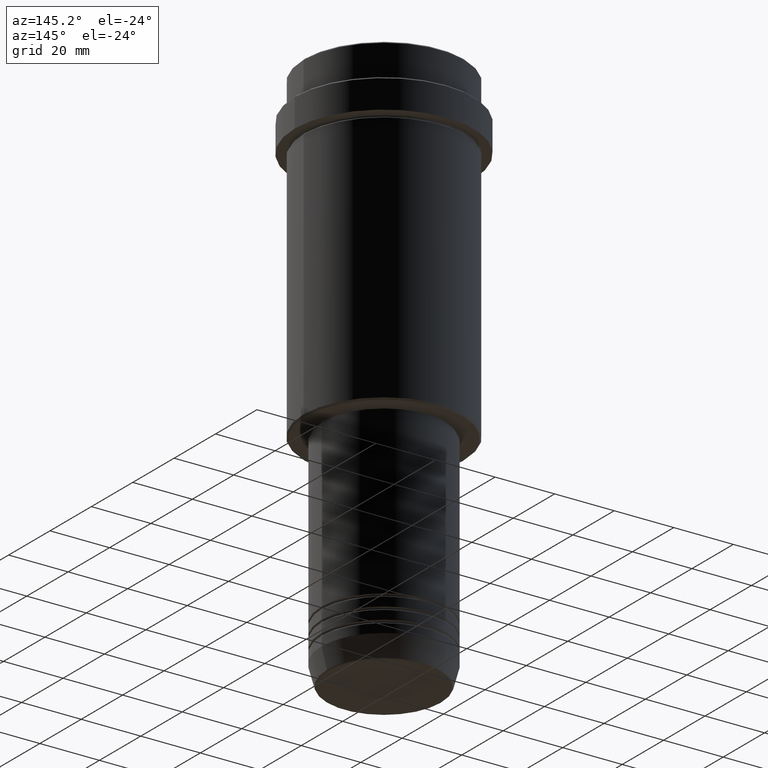
[diagram: clean part render]
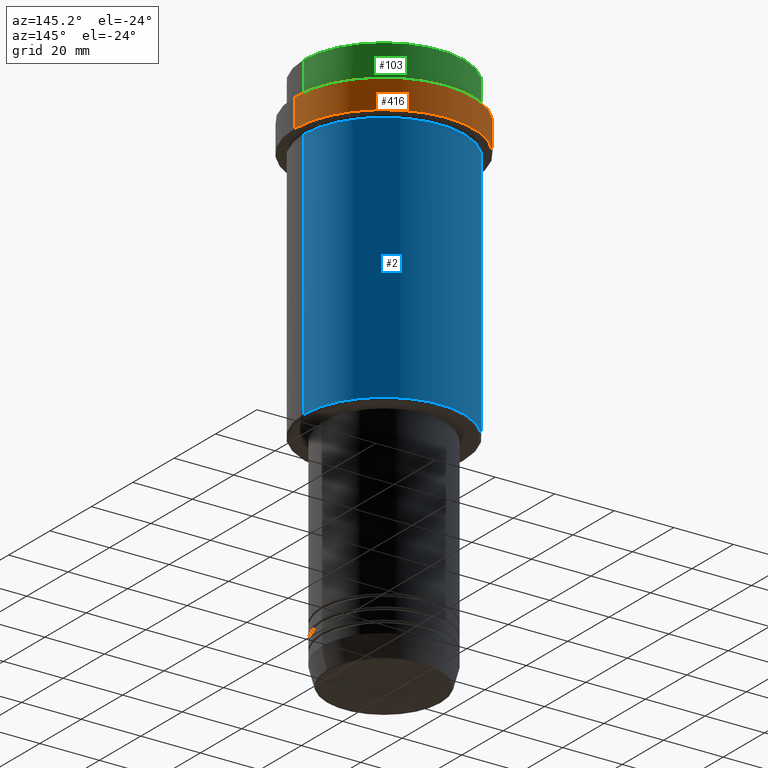
[diagram: same view with three faces highlighted in distinct colors, each labeled with its STEP entity id]
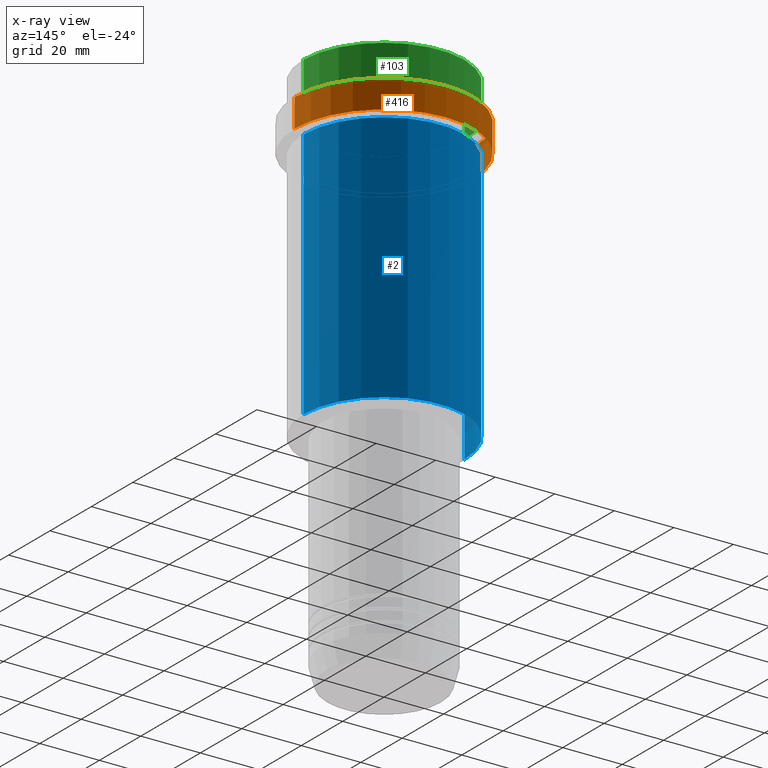
[diagram: x-ray of the same camera — body ghosted, the three highlighted faces saturated]
A machine part, auxiliary view with three faces highlighted in distinct colors.
The next image is the same camera in x-ray (body ghosted, the three faces saturated) — at least one of them is partly hidden behind the body in this view.
Their STEP definitions:

[orange] entity #416 — the highlighted cylindrical surface (partial cylindrical patch) has radius 30 mm, axis along (-0, -0, 1).
#30 = DIRECTION ( 'NONE',  ( 1.000000000000000000, 0.000000000000000000, 0.000000000000000000 ) ) ;
#39 = CARTESIAN_POINT ( 'NONE',  ( 0.000000000000000000, 0.000000000000000000, -22.00000000000000355 ) ) ;
#47 = ORIENTED_EDGE ( 'NONE', *, *, #409, .F. ) ;
#78 = VERTEX_POINT ( 'NONE', #212 ) ;
#107 = DIRECTION ( 'NONE',  ( -0.000000000000000000, -0.000000000000000000, 1.000000000000000000 ) ) ;
#211 = EDGE_CURVE ( 'NONE', #78, #968, #518, .T. ) ;
#212 = CARTESIAN_POINT ( 'NONE',  ( -30.00000000000000000, 3.673940397442059178E-15, -12.50000000000000888 ) ) ;
#243 = AXIS2_PLACEMENT_3D ( 'NONE', #1156, #692, #30 ) ;
#258 = VERTEX_POINT ( 'NONE', #618 ) ;
#285 = AXIS2_PLACEMENT_3D ( 'NONE', #39, #714, #617 ) ;
#311 = CARTESIAN_POINT ( 'NONE',  ( 0.000000000000000000, 0.000000000000000000, 0.000000000000000000 ) ) ;
#380 = VERTEX_POINT ( 'NONE', #406 ) ;
#391 = ORIENTED_EDGE ( 'NONE', *, *, #828, .T. ) ;
#406 = CARTESIAN_POINT ( 'NONE',  ( -29.99999999999999645, 3.673940397442058389E-15, -22.00000000000000355 ) ) ;
#409 = EDGE_CURVE ( 'NONE', #258, #968, #531, .T. ) ;
#416 = ADVANCED_FACE ( 'NONE', ( #1396 ), #1286, .T. ) ;
#425 = LINE ( 'NONE', #631, #661 ) ;
#471 = AXIS2_PLACEMENT_3D ( 'NONE', #311, #760, #647 ) ;
#518 = CIRCLE ( 'NONE', #243, 30.00000000000000000 ) ;
#531 = LINE ( 'NONE', #966, #592 ) ;
#592 = VECTOR ( 'NONE', #107, 1000.000000000000000 ) ;
#617 = DIRECTION ( 'NONE',  ( 1.000000000000000000, 0.000000000000000000, 0.000000000000000000 ) ) ;
#618 = CARTESIAN_POINT ( 'NONE',  ( 29.99999999999999645, 0.000000000000000000, -22.00000000000000355 ) ) ;
#631 = CARTESIAN_POINT ( 'NONE',  ( -30.00000000000000000, 3.673940397442059178E-15, 0.000000000000000000 ) ) ;
#647 = DIRECTION ( 'NONE',  ( 1.000000000000000000, 0.000000000000000000, 0.000000000000000000 ) ) ;
#661 = VECTOR ( 'NONE', #954, 1000.000000000000000 ) ;
#692 = DIRECTION ( 'NONE',  ( 0.000000000000000000, 0.000000000000000000, -1.000000000000000000 ) ) ;
#713 = EDGE_CURVE ( 'NONE', #258, #380, #1115, .T. ) ;
#714 = DIRECTION ( 'NONE',  ( -0.000000000000000000, -0.000000000000000000, 1.000000000000000000 ) ) ;
#739 = ORIENTED_EDGE ( 'NONE', *, *, #211, .T. ) ;
#760 = DIRECTION ( 'NONE',  ( -0.000000000000000000, -0.000000000000000000, 1.000000000000000000 ) ) ;
#828 = EDGE_CURVE ( 'NONE', #380, #78, #425, .T. ) ;
#857 = EDGE_LOOP ( 'NONE', ( #924, #391, #739, #47 ) ) ;
#924 = ORIENTED_EDGE ( 'NONE', *, *, #713, .T. ) ;
#954 = DIRECTION ( 'NONE',  ( -0.000000000000000000, -0.000000000000000000, 1.000000000000000000 ) ) ;
#966 = CARTESIAN_POINT ( 'NONE',  ( 30.00000000000000000, 0.000000000000000000, 0.000000000000000000 ) ) ;
#968 = VERTEX_POINT ( 'NONE', #1324 ) ;
#1115 = CIRCLE ( 'NONE', #285, 29.99999999999999645 ) ;
#1156 = CARTESIAN_POINT ( 'NONE',  ( 0.000000000000000000, 0.000000000000000000, -12.50000000000000888 ) ) ;
#1286 = CYLINDRICAL_SURFACE ( 'NONE', #471, 30.00000000000000000 ) ;
#1324 = CARTESIAN_POINT ( 'NONE',  ( 30.00000000000000000, 0.000000000000000000, -12.50000000000000888 ) ) ;
#1396 = FACE_OUTER_BOUND ( 'NONE', #857, .T. ) ;

[blue] entity #2 — the highlighted cylindrical surface (partial cylindrical patch) has radius 27 mm, axis along (-0, -0, 1).
#2 = ADVANCED_FACE ( 'NONE', ( #398 ), #1177, .T. ) ;
#41 = ORIENTED_EDGE ( 'NONE', *, *, #1093, .F. ) ;
#99 = DIRECTION ( 'NONE',  ( -0.000000000000000000, -0.000000000000000000, 1.000000000000000000 ) ) ;
#105 = CARTESIAN_POINT ( 'NONE',  ( 0.000000000000000000, 0.000000000000000000, -107.4999999999999716 ) ) ;
#128 = DIRECTION ( 'NONE',  ( -0.000000000000000000, -0.000000000000000000, 1.000000000000000000 ) ) ;
#150 = AXIS2_PLACEMENT_3D ( 'NONE', #105, #128, #1221 ) ;
#171 = CARTESIAN_POINT ( 'NONE',  ( -26.99999999999999645, 3.306546357697853339E-15, -23.00000000000000000 ) ) ;
#183 = EDGE_CURVE ( 'NONE', #547, #842, #680, .T. ) ;
#290 = ORIENTED_EDGE ( 'NONE', *, *, #1166, .F. ) ;
#297 = DIRECTION ( 'NONE',  ( -0.000000000000000000, -0.000000000000000000, 1.000000000000000000 ) ) ;
#398 = FACE_OUTER_BOUND ( 'NONE', #599, .T. ) ;
#410 = CARTESIAN_POINT ( 'NONE',  ( 0.000000000000000000, 0.000000000000000000, 0.000000000000000000 ) ) ;
#451 = CIRCLE ( 'NONE', #1159, 26.99999999999999645 ) ;
#460 = VERTEX_POINT ( 'NONE', #1124 ) ;
#547 = VERTEX_POINT ( 'NONE', #1318 ) ;
#587 = LINE ( 'NONE', #1045, #1410 ) ;
#599 = EDGE_LOOP ( 'NONE', ( #1384, #1244, #290, #41 ) ) ;
#680 = CIRCLE ( 'NONE', #150, 26.99999999999999645 ) ;
#710 = DIRECTION ( 'NONE',  ( 1.000000000000000000, 0.000000000000000000, 0.000000000000000000 ) ) ;
#723 = VERTEX_POINT ( 'NONE', #171 ) ;
#748 = AXIS2_PLACEMENT_3D ( 'NONE', #410, #297, #1363 ) ;
#811 = DIRECTION ( 'NONE',  ( -0.000000000000000000, -0.000000000000000000, 1.000000000000000000 ) ) ;
#842 = VERTEX_POINT ( 'NONE', #1083 ) ;
#922 = CARTESIAN_POINT ( 'NONE',  ( 0.000000000000000000, 0.000000000000000000, -23.00000000000000000 ) ) ;
#946 = CARTESIAN_POINT ( 'NONE',  ( -26.99999999999999645, 3.306546357697853339E-15, 0.000000000000000000 ) ) ;
#1032 = VECTOR ( 'NONE', #99, 1000.000000000000000 ) ;
#1045 = CARTESIAN_POINT ( 'NONE',  ( 26.99999999999999645, 0.000000000000000000, 0.000000000000000000 ) ) ;
#1082 = LINE ( 'NONE', #946, #1032 ) ;
#1083 = CARTESIAN_POINT ( 'NONE',  ( -26.99999999999999645, 3.306546357697853339E-15, -107.4999999999999716 ) ) ;
#1093 = EDGE_CURVE ( 'NONE', #547, #460, #587, .T. ) ;
#1124 = CARTESIAN_POINT ( 'NONE',  ( 26.99999999999999645, 0.000000000000000000, -23.00000000000000000 ) ) ;
#1159 = AXIS2_PLACEMENT_3D ( 'NONE', #922, #1347, #710 ) ;
#1166 = EDGE_CURVE ( 'NONE', #460, #723, #451, .T. ) ;
#1177 = CYLINDRICAL_SURFACE ( 'NONE', #748, 26.99999999999999645 ) ;
#1221 = DIRECTION ( 'NONE',  ( -1.000000000000000000, 0.000000000000000000, 0.000000000000000000 ) ) ;
#1244 = ORIENTED_EDGE ( 'NONE', *, *, #1253, .T. ) ;
#1253 = EDGE_CURVE ( 'NONE', #842, #723, #1082, .T. ) ;
#1318 = CARTESIAN_POINT ( 'NONE',  ( 26.99999999999999645, 0.000000000000000000, -107.4999999999999716 ) ) ;
#1347 = DIRECTION ( 'NONE',  ( -0.000000000000000000, -0.000000000000000000, 1.000000000000000000 ) ) ;
#1363 = DIRECTION ( 'NONE',  ( 1.000000000000000000, 0.000000000000000000, 0.000000000000000000 ) ) ;
#1384 = ORIENTED_EDGE ( 'NONE', *, *, #183, .T. ) ;
#1410 = VECTOR ( 'NONE', #811, 1000.000000000000000 ) ;

[green] entity #103 — the highlighted cylindrical surface (partial cylindrical patch) has radius 27 mm, axis along (-0, -0, 1).
#103 = ADVANCED_FACE ( 'NONE', ( #533 ), #1100, .T. ) ;
#165 = CARTESIAN_POINT ( 'NONE',  ( 26.99999999999999645, 0.000000000000000000, 0.000000000000000000 ) ) ;
#191 = EDGE_CURVE ( 'NONE', #397, #596, #1373, .T. ) ;
#216 = DIRECTION ( 'NONE',  ( 1.000000000000000000, 0.000000000000000000, 0.000000000000000000 ) ) ;
#240 = ORIENTED_EDGE ( 'NONE', *, *, #191, .T. ) ;
#241 = CARTESIAN_POINT ( 'NONE',  ( -26.99999999999999645, 3.306546357697853339E-15, -0.4999999999999761302 ) ) ;
#250 = DIRECTION ( 'NONE',  ( 1.000000000000000000, 0.000000000000000000, 0.000000000000000000 ) ) ;
#252 = CARTESIAN_POINT ( 'NONE',  ( -26.99999999999999645, 3.306546357697853339E-15, 0.000000000000000000 ) ) ;
#269 = VERTEX_POINT ( 'NONE', #350 ) ;
#310 = AXIS2_PLACEMENT_3D ( 'NONE', #795, #583, #250 ) ;
#319 = DIRECTION ( 'NONE',  ( -0.000000000000000000, -0.000000000000000000, 1.000000000000000000 ) ) ;
#350 = CARTESIAN_POINT ( 'NONE',  ( 26.99999999999999645, 0.000000000000000000, -0.4999999999999761302 ) ) ;
#361 = ORIENTED_EDGE ( 'NONE', *, *, #559, .T. ) ;
#373 = AXIS2_PLACEMENT_3D ( 'NONE', #1098, #1192, #903 ) ;
#397 = VERTEX_POINT ( 'NONE', #972 ) ;
#458 = EDGE_CURVE ( 'NONE', #462, #397, #1357, .T. ) ;
#462 = VERTEX_POINT ( 'NONE', #468 ) ;
#468 = CARTESIAN_POINT ( 'NONE',  ( 26.99999999999999645, 0.000000000000000000, -11.00000000000000178 ) ) ;
#533 = FACE_OUTER_BOUND ( 'NONE', #586, .T. ) ;
#559 = EDGE_CURVE ( 'NONE', #596, #269, #728, .T. ) ;
#575 = ORIENTED_EDGE ( 'NONE', *, *, #721, .F. ) ;
#583 = DIRECTION ( 'NONE',  ( 0.000000000000000000, 0.000000000000000000, -1.000000000000000000 ) ) ;
#586 = EDGE_LOOP ( 'NONE', ( #814, #240, #361, #575 ) ) ;
#596 = VERTEX_POINT ( 'NONE', #241 ) ;
#638 = VECTOR ( 'NONE', #830, 1000.000000000000000 ) ;
#721 = EDGE_CURVE ( 'NONE', #462, #269, #1144, .T. ) ;
#728 = CIRCLE ( 'NONE', #310, 26.99999999999999645 ) ;
#775 = CARTESIAN_POINT ( 'NONE',  ( 0.000000000000000000, 0.000000000000000000, 0.000000000000000000 ) ) ;
#795 = CARTESIAN_POINT ( 'NONE',  ( 0.000000000000000000, 0.000000000000000000, -0.4999999999999761302 ) ) ;
#807 = DIRECTION ( 'NONE',  ( -0.000000000000000000, -0.000000000000000000, 1.000000000000000000 ) ) ;
#814 = ORIENTED_EDGE ( 'NONE', *, *, #458, .T. ) ;
#830 = DIRECTION ( 'NONE',  ( -0.000000000000000000, -0.000000000000000000, 1.000000000000000000 ) ) ;
#903 = DIRECTION ( 'NONE',  ( 1.000000000000000000, 0.000000000000000000, 0.000000000000000000 ) ) ;
#910 = VECTOR ( 'NONE', #807, 1000.000000000000000 ) ;
#972 = CARTESIAN_POINT ( 'NONE',  ( -26.99999999999999645, 3.306546357697853339E-15, -11.00000000000000178 ) ) ;
#1001 = AXIS2_PLACEMENT_3D ( 'NONE', #775, #319, #216 ) ;
#1098 = CARTESIAN_POINT ( 'NONE',  ( 0.000000000000000000, 0.000000000000000000, -11.00000000000000178 ) ) ;
#1100 = CYLINDRICAL_SURFACE ( 'NONE', #1001, 26.99999999999999645 ) ;
#1144 = LINE ( 'NONE', #165, #638 ) ;
#1192 = DIRECTION ( 'NONE',  ( -0.000000000000000000, -0.000000000000000000, 1.000000000000000000 ) ) ;
#1357 = CIRCLE ( 'NONE', #373, 26.99999999999999645 ) ;
#1373 = LINE ( 'NONE', #252, #910 ) ;